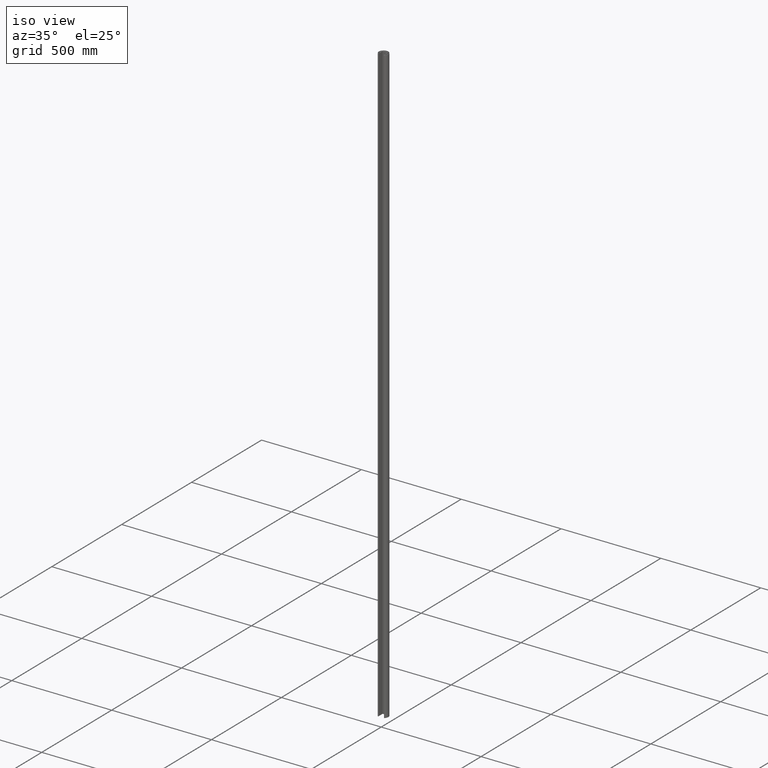
[diagram: clean part render]
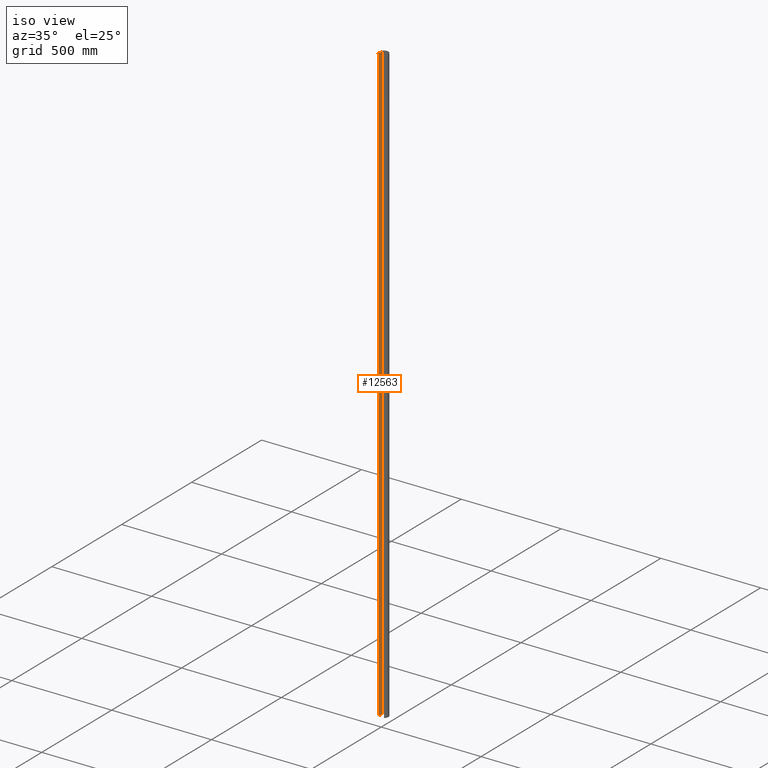
[diagram: same view with one face highlighted and labeled with its STEP entity id]
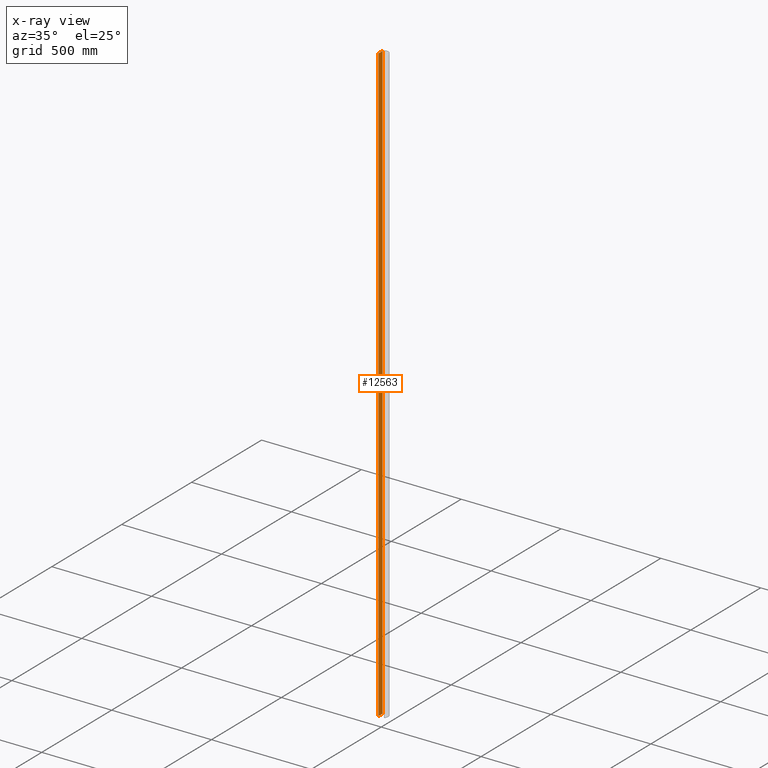
[diagram: x-ray of the same camera — body ghosted, the highlighted face saturated]
A machine part, iso view. The second image highlights one B-rep face of the part: STEP entity #12563.
The next image is the same camera in x-ray: the body ghosted, the highlighted face saturated — about 0% of this face is hidden behind the body in this view.
In plain terms, the highlighted planar face has unit normal (1, -0, 0).
Its self-contained STEP definition (entity closure, byte-faithful):
#60 = VECTOR ( 'NONE', #642, 1000.000000000000000 ) ;
#642 = DIRECTION ( 'NONE',  ( 6.308085367188389994E-17, 1.000000000000000000, 0.000000000000000000 ) ) ;
#967 = DIRECTION ( 'NONE',  ( 6.308085367188388762E-17, 1.000000000000000000, 0.000000000000000000 ) ) ;
#1412 = LINE ( 'NONE', #7918, #60 ) ;
#1864 = VERTEX_POINT ( 'NONE', #5173 ) ;
#1987 = EDGE_CURVE ( 'NONE', #1864, #14248, #1412, .T. ) ;
#2572 = AXIS2_PLACEMENT_3D ( 'NONE', #13114, #14342, #967 ) ;
#3142 = EDGE_CURVE ( 'NONE', #13264, #9807, #3313, .T. ) ;
#3304 = EDGE_CURVE ( 'NONE', #13264, #1864, #11911, .T. ) ;
#3313 = LINE ( 'NONE', #3883, #11530 ) ;
#3883 = CARTESIAN_POINT ( 'NONE',  ( -13.50000000000000000, 1.148062247603463204, -1500.000000000000000 ) ) ;
#3990 = CARTESIAN_POINT ( 'NONE',  ( -13.49999999999999822, 28.64806224760345899, -1500.000000000000000 ) ) ;
#4079 = CARTESIAN_POINT ( 'NONE',  ( -13.49999999999999822, 28.64806224760345899, 1500.000000000000000 ) ) ;
#4800 = CARTESIAN_POINT ( 'NONE',  ( -13.49999999999999822, 28.64806224760345899, -1500.000000000000000 ) ) ;
#5173 = CARTESIAN_POINT ( 'NONE',  ( -13.50000000000000000, 1.148062247603463204, 1500.000000000000000 ) ) ;
#5290 = EDGE_LOOP ( 'NONE', ( #7778, #12898, #7924, #11448 ) ) ;
#7358 = CARTESIAN_POINT ( 'NONE',  ( -13.50000000000000000, 1.148062247603463204, -1500.000000000000000 ) ) ;
#7778 = ORIENTED_EDGE ( 'NONE', *, *, #1987, .F. ) ;
#7918 = CARTESIAN_POINT ( 'NONE',  ( -13.50000000000000000, 1.148062247603463204, 1500.000000000000000 ) ) ;
#7924 = ORIENTED_EDGE ( 'NONE', *, *, #3142, .T. ) ;
#8979 = FACE_OUTER_BOUND ( 'NONE', #5290, .T. ) ;
#9375 = VECTOR ( 'NONE', #12013, 1000.000000000000000 ) ;
#9807 = VERTEX_POINT ( 'NONE', #3990 ) ;
#11217 = DIRECTION ( 'NONE',  ( 0.000000000000000000, 0.000000000000000000, 1.000000000000000000 ) ) ;
#11448 = ORIENTED_EDGE ( 'NONE', *, *, #12522, .T. ) ;
#11530 = VECTOR ( 'NONE', #12450, 1000.000000000000000 ) ;
#11911 = LINE ( 'NONE', #14648, #13201 ) ;
#12013 = DIRECTION ( 'NONE',  ( 0.000000000000000000, 0.000000000000000000, 1.000000000000000000 ) ) ;
#12450 = DIRECTION ( 'NONE',  ( 6.308085367188389994E-17, 1.000000000000000000, 0.000000000000000000 ) ) ;
#12522 = EDGE_CURVE ( 'NONE', #9807, #14248, #12655, .T. ) ;
#12563 = ADVANCED_FACE ( 'NONE', ( #8979 ), #15791, .T. ) ;
#12655 = LINE ( 'NONE', #4800, #9375 ) ;
#12898 = ORIENTED_EDGE ( 'NONE', *, *, #3304, .F. ) ;
#13114 = CARTESIAN_POINT ( 'NONE',  ( -13.50000000000000000, 1.148062247603463204, -1500.000000000000000 ) ) ;
#13201 = VECTOR ( 'NONE', #11217, 1000.000000000000000 ) ;
#13264 = VERTEX_POINT ( 'NONE', #7358 ) ;
#14248 = VERTEX_POINT ( 'NONE', #4079 ) ;
#14342 = DIRECTION ( 'NONE',  ( 1.000000000000000000, -6.308085367188388762E-17, 0.000000000000000000 ) ) ;
#14648 = CARTESIAN_POINT ( 'NONE',  ( -13.50000000000000000, 1.148062247603463204, -1500.000000000000000 ) ) ;
#15791 = PLANE ( 'NONE',  #2572 ) ;